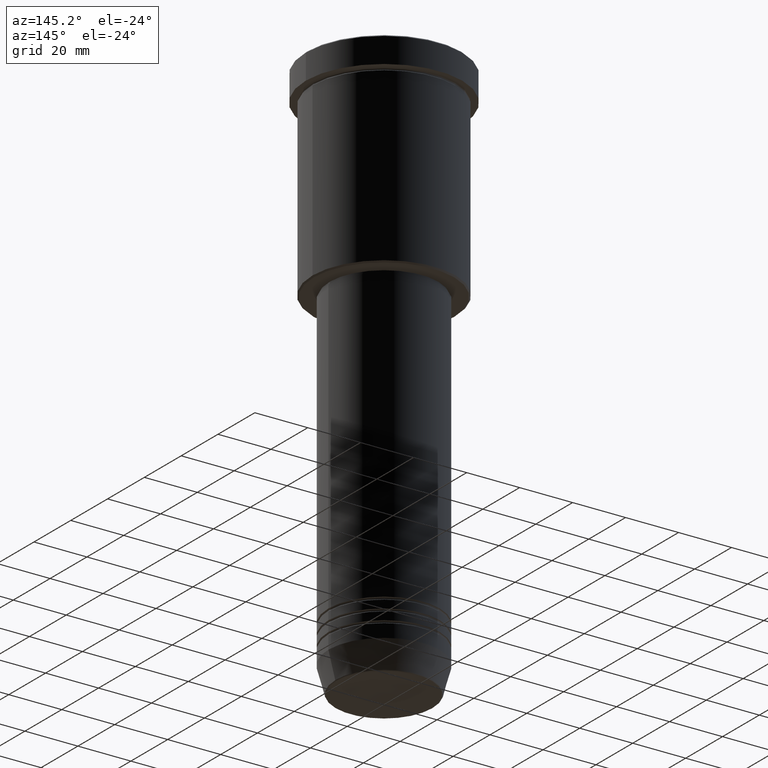
[diagram: clean part render]
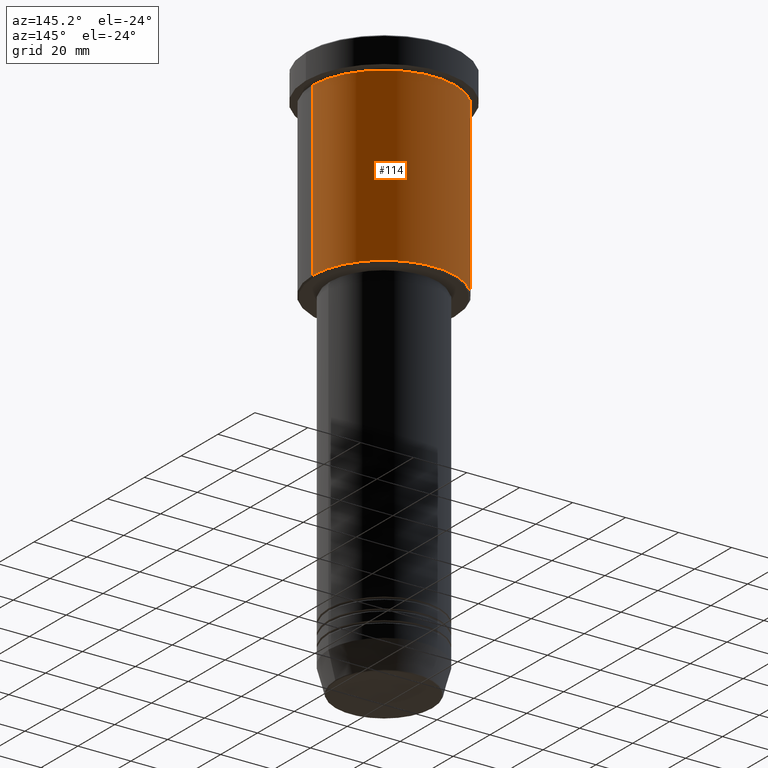
[diagram: same view with one face highlighted and labeled with its STEP entity id]
A machine part, auxiliary view. The second image highlights one B-rep face of the part: STEP entity #114.
In plain terms, the highlighted cylindrical surface (partial cylindrical patch) has radius 27 mm, axis along (-0, -0, 1).
Its self-contained STEP definition (entity closure, byte-faithful):
#3 = CARTESIAN_POINT ( 'NONE',  ( -27.00000000000000355, 3.306546357697854128E-15, -75.49999999999994316 ) ) ;
#16 = CYLINDRICAL_SURFACE ( 'NONE', #672, 27.00000000000000355 ) ;
#51 = ORIENTED_EDGE ( 'NONE', *, *, #231, .F. ) ;
#58 = DIRECTION ( 'NONE',  ( 1.000000000000000000, 0.000000000000000000, 0.000000000000000000 ) ) ;
#114 = ADVANCED_FACE ( 'NONE', ( #314 ), #16, .T. ) ;
#135 = CARTESIAN_POINT ( 'NONE',  ( 27.00000000000000355, 0.000000000000000000, 0.000000000000000000 ) ) ;
#174 = ORIENTED_EDGE ( 'NONE', *, *, #497, .T. ) ;
#199 = CIRCLE ( 'NONE', #978, 27.00000000000000355 ) ;
#207 = LINE ( 'NONE', #135, #540 ) ;
#218 = DIRECTION ( 'NONE',  ( -0.000000000000000000, -0.000000000000000000, 1.000000000000000000 ) ) ;
#231 = EDGE_CURVE ( 'NONE', #647, #275, #207, .T. ) ;
#242 = ORIENTED_EDGE ( 'NONE', *, *, #822, .T. ) ;
#255 = DIRECTION ( 'NONE',  ( -0.000000000000000000, -0.000000000000000000, 1.000000000000000000 ) ) ;
#261 = EDGE_LOOP ( 'NONE', ( #174, #242, #1007, #51 ) ) ;
#275 = VERTEX_POINT ( 'NONE', #684 ) ;
#294 = VECTOR ( 'NONE', #1025, 1000.000000000000000 ) ;
#301 = CARTESIAN_POINT ( 'NONE',  ( 27.00000000000000355, 0.000000000000000000, -75.49999999999994316 ) ) ;
#314 = FACE_OUTER_BOUND ( 'NONE', #261, .T. ) ;
#360 = EDGE_CURVE ( 'NONE', #275, #951, #199, .T. ) ;
#430 = CARTESIAN_POINT ( 'NONE',  ( -27.00000000000000355, 3.306546357697854128E-15, -10.99999999999999289 ) ) ;
#484 = CARTESIAN_POINT ( 'NONE',  ( 0.000000000000000000, 0.000000000000000000, 0.000000000000000000 ) ) ;
#497 = EDGE_CURVE ( 'NONE', #647, #550, #1052, .T. ) ;
#540 = VECTOR ( 'NONE', #776, 1000.000000000000000 ) ;
#550 = VERTEX_POINT ( 'NONE', #3 ) ;
#582 = DIRECTION ( 'NONE',  ( 1.000000000000000000, 0.000000000000000000, 0.000000000000000000 ) ) ;
#609 = CARTESIAN_POINT ( 'NONE',  ( 0.000000000000000000, 0.000000000000000000, -10.99999999999999289 ) ) ;
#647 = VERTEX_POINT ( 'NONE', #301 ) ;
#672 = AXIS2_PLACEMENT_3D ( 'NONE', #484, #218, #582 ) ;
#684 = CARTESIAN_POINT ( 'NONE',  ( 27.00000000000000355, 0.000000000000000000, -10.99999999999999289 ) ) ;
#776 = DIRECTION ( 'NONE',  ( -0.000000000000000000, -0.000000000000000000, 1.000000000000000000 ) ) ;
#822 = EDGE_CURVE ( 'NONE', #550, #951, #835, .T. ) ;
#835 = LINE ( 'NONE', #842, #294 ) ;
#842 = CARTESIAN_POINT ( 'NONE',  ( -27.00000000000000355, 3.306546357697854128E-15, 0.000000000000000000 ) ) ;
#910 = DIRECTION ( 'NONE',  ( -1.000000000000000000, 0.000000000000000000, 0.000000000000000000 ) ) ;
#951 = VERTEX_POINT ( 'NONE', #430 ) ;
#978 = AXIS2_PLACEMENT_3D ( 'NONE', #609, #255, #58 ) ;
#993 = CARTESIAN_POINT ( 'NONE',  ( 0.000000000000000000, 0.000000000000000000, -75.49999999999994316 ) ) ;
#1007 = ORIENTED_EDGE ( 'NONE', *, *, #360, .F. ) ;
#1025 = DIRECTION ( 'NONE',  ( -0.000000000000000000, -0.000000000000000000, 1.000000000000000000 ) ) ;
#1032 = AXIS2_PLACEMENT_3D ( 'NONE', #993, #1097, #910 ) ;
#1052 = CIRCLE ( 'NONE', #1032, 27.00000000000000355 ) ;
#1097 = DIRECTION ( 'NONE',  ( -0.000000000000000000, -0.000000000000000000, 1.000000000000000000 ) ) ;